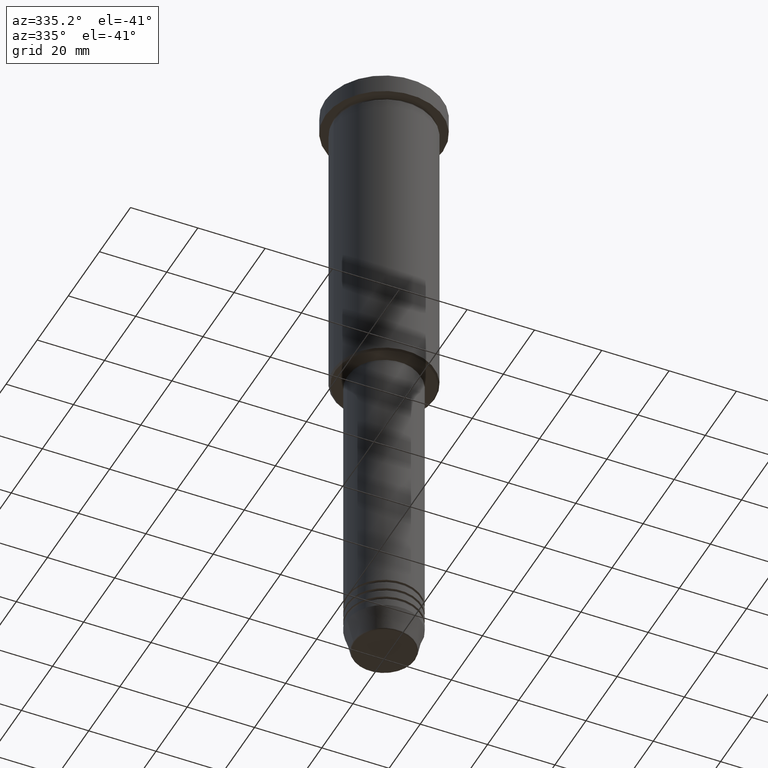
[diagram: clean part render]
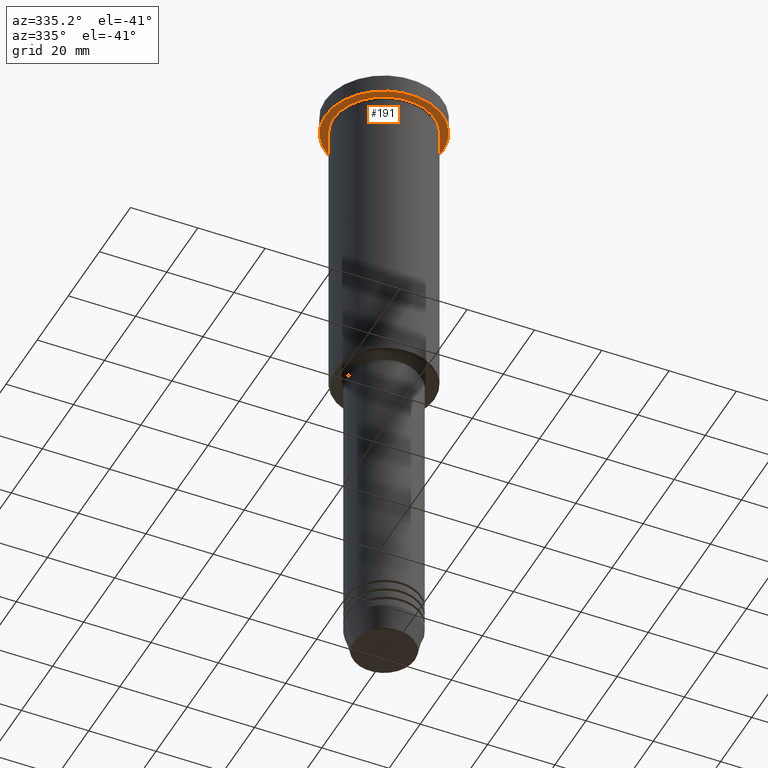
[diagram: same view with one face highlighted and labeled with its STEP entity id]
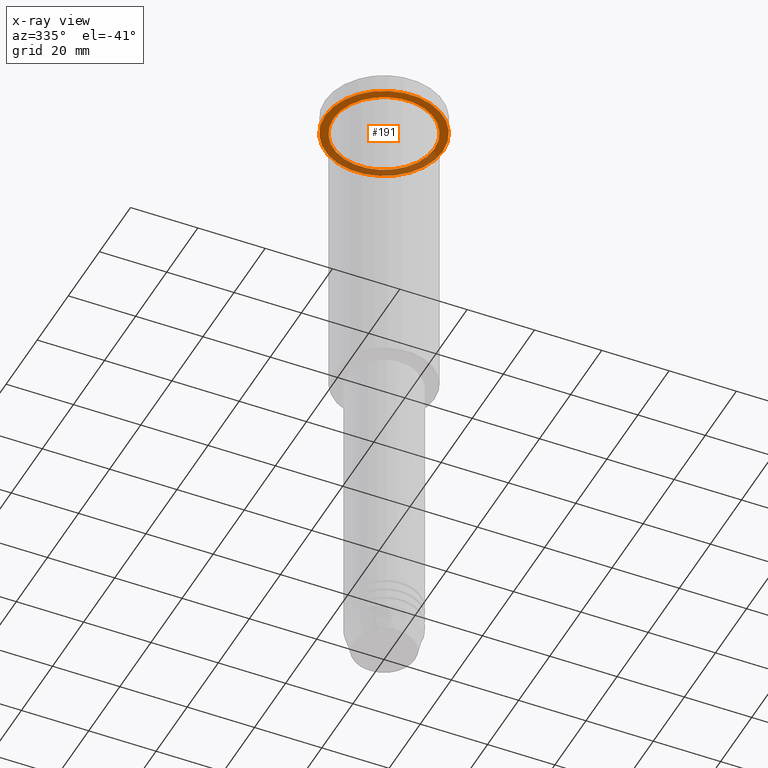
[diagram: x-ray of the same camera — body ghosted, the highlighted face saturated]
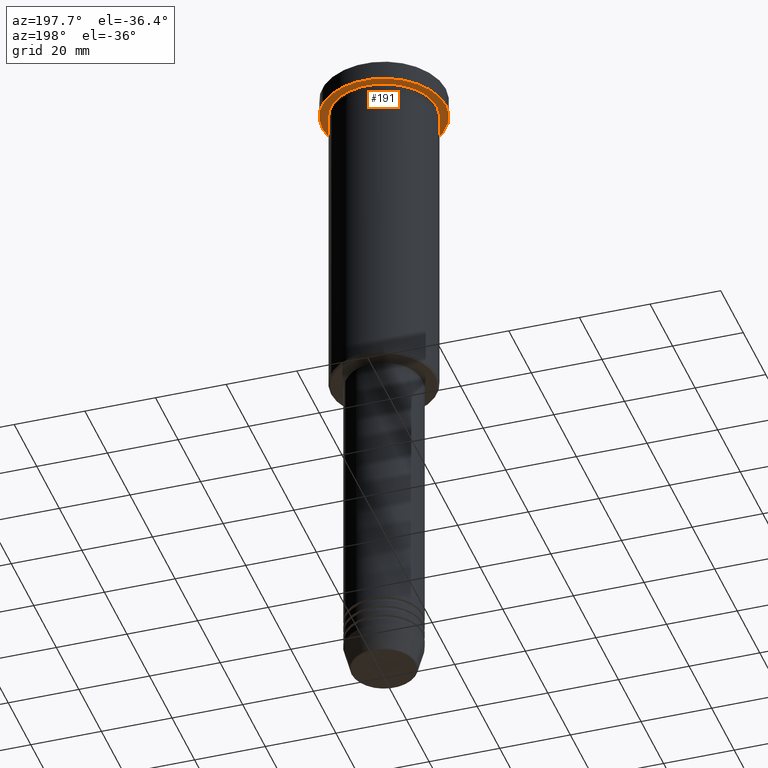
[diagram: same view with one face highlighted and labeled with its STEP entity id]
A machine part, auxiliary view. The second image highlights one B-rep face of the part: STEP entity #191.
The next image is the same camera in x-ray: the body ghosted, the highlighted face saturated — about 33% of this face is hidden behind the body in this view.
A second angle (auxiliary view) of the same face is appended — the face is thin or edge-on in the first view.
In plain terms, the highlighted planar face has unit normal (0, 0, -1).
Its self-contained STEP definition (entity closure, byte-faithful):
#11 = CARTESIAN_POINT ( 'NONE',  ( 0.000000000000000000, 0.000000000000000000, -5.999999999999995559 ) ) ;
#28 = FACE_BOUND ( 'NONE', #49, .T. ) ;
#39 = AXIS2_PLACEMENT_3D ( 'NONE', #205, #571, #108 ) ;
#49 = EDGE_LOOP ( 'NONE', ( #229, #363 ) ) ;
#93 = PLANE ( 'NONE',  #601 ) ;
#108 = DIRECTION ( 'NONE',  ( -1.000000000000000000, 0.000000000000000000, 0.000000000000000000 ) ) ;
#130 = ORIENTED_EDGE ( 'NONE', *, *, #383, .F. ) ;
#187 = CARTESIAN_POINT ( 'NONE',  ( 0.000000000000000000, 0.000000000000000000, -5.999999999999995559 ) ) ;
#191 = ADVANCED_FACE ( 'NONE', ( #28, #307 ), #93, .T. ) ;
#205 = CARTESIAN_POINT ( 'NONE',  ( 0.000000000000000000, 0.000000000000000000, -5.999999999999995559 ) ) ;
#214 = DIRECTION ( 'NONE',  ( -0.000000000000000000, -0.000000000000000000, 1.000000000000000000 ) ) ;
#229 = ORIENTED_EDGE ( 'NONE', *, *, #460, .T. ) ;
#279 = DIRECTION ( 'NONE',  ( 1.000000000000000000, 0.000000000000000000, 0.000000000000000000 ) ) ;
#280 = VERTEX_POINT ( 'NONE', #290 ) ;
#290 = CARTESIAN_POINT ( 'NONE',  ( -17.50000000000000000, 2.143131898507868248E-15, -5.999999999999995559 ) ) ;
#307 = FACE_OUTER_BOUND ( 'NONE', #971, .T. ) ;
#363 = ORIENTED_EDGE ( 'NONE', *, *, #639, .T. ) ;
#376 = AXIS2_PLACEMENT_3D ( 'NONE', #11, #952, #1105 ) ;
#382 = CARTESIAN_POINT ( 'NONE',  ( 0.000000000000000000, 0.000000000000000000, -5.999999999999995559 ) ) ;
#383 = EDGE_CURVE ( 'NONE', #455, #280, #887, .T. ) ;
#448 = EDGE_CURVE ( 'NONE', #280, #455, #749, .T. ) ;
#450 = AXIS2_PLACEMENT_3D ( 'NONE', #187, #908, #279 ) ;
#455 = VERTEX_POINT ( 'NONE', #934 ) ;
#460 = EDGE_CURVE ( 'NONE', #856, #824, #1052, .T. ) ;
#505 = AXIS2_PLACEMENT_3D ( 'NONE', #382, #214, #1123 ) ;
#564 = CIRCLE ( 'NONE', #39, 15.00000000000000000 ) ;
#571 = DIRECTION ( 'NONE',  ( -0.000000000000000000, -0.000000000000000000, 1.000000000000000000 ) ) ;
#601 = AXIS2_PLACEMENT_3D ( 'NONE', #755, #803, #1002 ) ;
#639 = EDGE_CURVE ( 'NONE', #824, #856, #564, .T. ) ;
#701 = CARTESIAN_POINT ( 'NONE',  ( -15.00000000000000000, 0.000000000000000000, -5.999999999999994671 ) ) ;
#749 = CIRCLE ( 'NONE', #505, 17.50000000000000000 ) ;
#755 = CARTESIAN_POINT ( 'NONE',  ( 0.000000000000000000, 17.50000000000000000, -5.999999999999995559 ) ) ;
#803 = DIRECTION ( 'NONE',  ( 0.000000000000000000, 0.000000000000000000, -1.000000000000000000 ) ) ;
#806 = ORIENTED_EDGE ( 'NONE', *, *, #448, .F. ) ;
#824 = VERTEX_POINT ( 'NONE', #1142 ) ;
#856 = VERTEX_POINT ( 'NONE', #701 ) ;
#887 = CIRCLE ( 'NONE', #450, 17.50000000000000000 ) ;
#908 = DIRECTION ( 'NONE',  ( -0.000000000000000000, -0.000000000000000000, 1.000000000000000000 ) ) ;
#934 = CARTESIAN_POINT ( 'NONE',  ( 17.50000000000000000, 0.000000000000000000, -5.999999999999995559 ) ) ;
#952 = DIRECTION ( 'NONE',  ( -0.000000000000000000, -0.000000000000000000, 1.000000000000000000 ) ) ;
#971 = EDGE_LOOP ( 'NONE', ( #130, #806 ) ) ;
#1002 = DIRECTION ( 'NONE',  ( -1.000000000000000000, 0.000000000000000000, -0.000000000000000000 ) ) ;
#1052 = CIRCLE ( 'NONE', #376, 15.00000000000000000 ) ;
#1105 = DIRECTION ( 'NONE',  ( -1.000000000000000000, 0.000000000000000000, 0.000000000000000000 ) ) ;
#1123 = DIRECTION ( 'NONE',  ( 1.000000000000000000, 0.000000000000000000, 0.000000000000000000 ) ) ;
#1142 = CARTESIAN_POINT ( 'NONE',  ( 15.00000000000000000, 1.836970198721029589E-15, -5.999999999999994671 ) ) ;